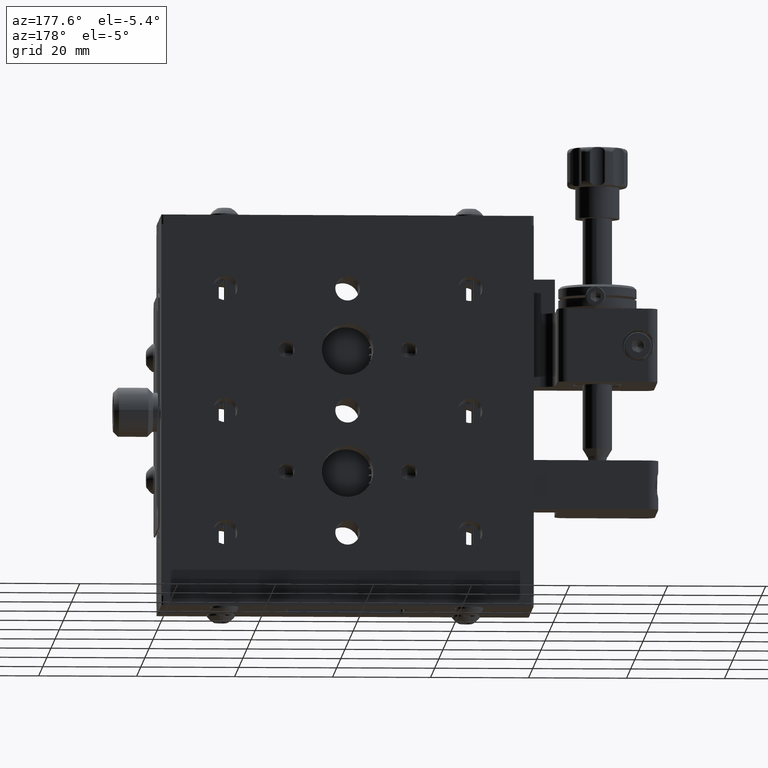
[diagram: clean part render]
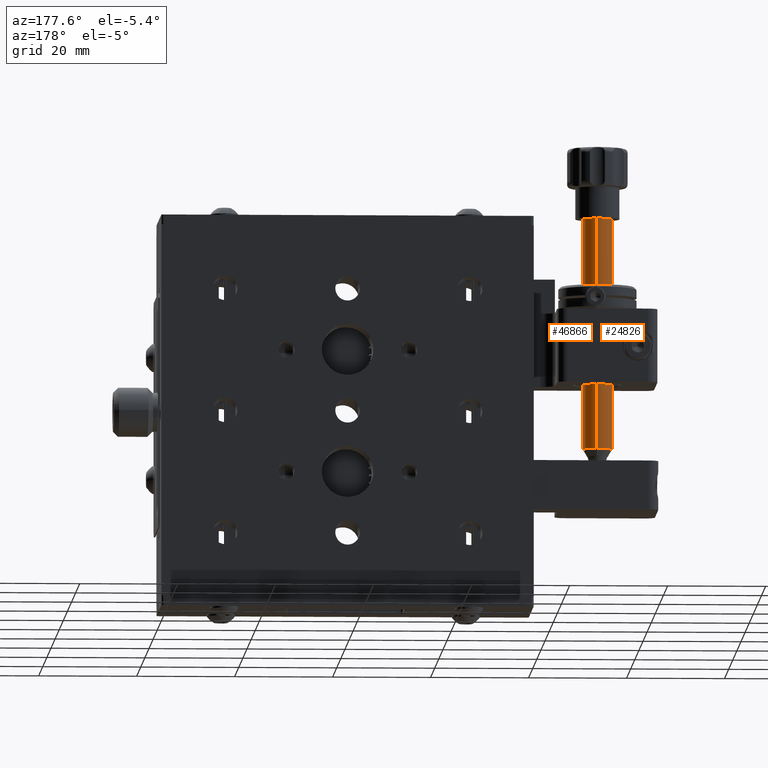
[diagram: same view with one multi-face feature highlighted, each face labeled with its STEP entity id]
A machine part, auxiliary view. The highlighted faces form ONE feature: a constant-radius fillet chain: 2 tangent blend faces with common blend radius 3 mm. The faces share edges in the B-rep.
Their STEP definitions:
[1] entity #46866 (Cylinder):
#459 = LINE ( 'NONE', #47248, #13894 ) ;
#2245 = DIRECTION ( 'NONE',  ( -0.09068454405069052700, -0.9958796681679560300, 0.0000000000000000000 ) ) ;
#3100 = DIRECTION ( 'NONE',  ( -0.09068454405069052700, -0.9958796681679560300, 0.0000000000000000000 ) ) ;
#5027 = VERTEX_POINT ( 'NONE', #61770 ) ;
#9995 = CARTESIAN_POINT ( 'NONE',  ( -30.06647780438392200, -1.681196788895382000, 84.89088264794395400 ) ) ;
#13165 = CIRCLE ( 'NONE', #39322, 3.000000000000000000 ) ;
#13894 = VECTOR ( 'NONE', #24635, 1000.000000000000000 ) ;
#14003 = CARTESIAN_POINT ( 'NONE',  ( -30.06647780438388700, -1.681196788895380500, 157.9300000000000100 ) ) ;
#15630 = CIRCLE ( 'NONE', #65214, 3.000000000000000000 ) ;
#15789 = DIRECTION ( 'NONE',  ( -0.09068454405069052700, -0.9958796681679560300, 0.0000000000000000000 ) ) ;
#17636 = VERTEX_POINT ( 'NONE', #19613 ) ;
#18684 = EDGE_CURVE ( 'NONE', #66996, #21886, #61642, .T. ) ;
#19206 = AXIS2_PLACEMENT_3D ( 'NONE', #66105, #54923, #15789 ) ;
#19613 = CARTESIAN_POINT ( 'NONE',  ( -29.52237054007977300, 4.294081220112353500, 104.4300000000001200 ) ) ;
#19821 = DIRECTION ( 'NONE',  ( -4.820006804609305600E-016, -2.775557562830245700E-017, -1.000000000000000000 ) ) ;
#21886 = VERTEX_POINT ( 'NONE', #60204 ) ;
#22444 = DIRECTION ( 'NONE',  ( -4.820006804609305600E-016, -2.775557562830245700E-017, -1.000000000000000000 ) ) ;
#23957 = DIRECTION ( 'NONE',  ( -4.820006804609305600E-016, -2.775557562830245700E-017, -1.000000000000000000 ) ) ;
#24635 = DIRECTION ( 'NONE',  ( -4.820006804609305600E-016, -2.775557562830245700E-017, -1.000000000000000000 ) ) ;
#25960 = ORIENTED_EDGE ( 'NONE', *, *, #39052, .F. ) ;
#26359 = FACE_OUTER_BOUND ( 'NONE', #55074, .T. ) ;
#26959 = VECTOR ( 'NONE', #22444, 1000.000000000000000 ) ;
#32840 = ORIENTED_EDGE ( 'NONE', *, *, #57939, .F. ) ;
#39052 = EDGE_CURVE ( 'NONE', #5027, #17636, #459, .T. ) ;
#39322 = AXIS2_PLACEMENT_3D ( 'NONE', #47072, #23957, #2245 ) ;
#42212 = CARTESIAN_POINT ( 'NONE',  ( -29.79442417223181400, 1.306442215608487600, 157.9300000000000100 ) ) ;
#44411 = ORIENTED_EDGE ( 'NONE', *, *, #51253, .T. ) ;
#46866 = ADVANCED_FACE ( 'NONE', ( #26359 ), #69131, .T. ) ;
#47072 = CARTESIAN_POINT ( 'NONE',  ( -29.79442417223184200, 1.306442215608485200, 104.4300000000001200 ) ) ;
#47248 = CARTESIAN_POINT ( 'NONE',  ( -29.52237054007977700, 4.294081220112353500, 84.89088264794395400 ) ) ;
#50515 = ORIENTED_EDGE ( 'NONE', *, *, #18684, .T. ) ;
#51253 = EDGE_CURVE ( 'NONE', #5027, #66996, #15630, .T. ) ;
#54923 = DIRECTION ( 'NONE',  ( -4.820006804609305600E-016, -2.775557562830245700E-017, -1.000000000000000000 ) ) ;
#55074 = EDGE_LOOP ( 'NONE', ( #25960, #44411, #50515, #32840 ) ) ;
#57939 = EDGE_CURVE ( 'NONE', #17636, #21886, #13165, .T. ) ;
#60204 = CARTESIAN_POINT ( 'NONE',  ( -30.06647780438391500, -1.681196788895382900, 104.4300000000001200 ) ) ;
#61642 = LINE ( 'NONE', #9995, #26959 ) ;
#61770 = CARTESIAN_POINT ( 'NONE',  ( -29.52237054007975900, 4.294081220112357900, 157.9300000000000100 ) ) ;
#65214 = AXIS2_PLACEMENT_3D ( 'NONE', #42212, #19821, #3100 ) ;
#66105 = CARTESIAN_POINT ( 'NONE',  ( -29.79442417223184900, 1.306442215608486100, 84.89088264794395400 ) ) ;
#66996 = VERTEX_POINT ( 'NONE', #14003 ) ;
#69131 = CYLINDRICAL_SURFACE ( 'NONE', #19206, 3.000000000000000000 ) ;
[2] entity #24826 (Cylinder):
#459 = LINE ( 'NONE', #47248, #13894 ) ;
#5027 = VERTEX_POINT ( 'NONE', #61770 ) ;
#5456 = EDGE_LOOP ( 'NONE', ( #25801, #32623, #42681, #9273 ) ) ;
#6013 = CARTESIAN_POINT ( 'NONE',  ( -29.79442417223181400, 1.306442215608487600, 157.9300000000000100 ) ) ;
#6599 = AXIS2_PLACEMENT_3D ( 'NONE', #44114, #22202, #73203 ) ;
#9273 = ORIENTED_EDGE ( 'NONE', *, *, #18684, .F. ) ;
#9995 = CARTESIAN_POINT ( 'NONE',  ( -30.06647780438392200, -1.681196788895382000, 84.89088264794395400 ) ) ;
#11994 = AXIS2_PLACEMENT_3D ( 'NONE', #64633, #47416, #48152 ) ;
#13894 = VECTOR ( 'NONE', #24635, 1000.000000000000000 ) ;
#14003 = CARTESIAN_POINT ( 'NONE',  ( -30.06647780438388700, -1.681196788895380500, 157.9300000000000100 ) ) ;
#17636 = VERTEX_POINT ( 'NONE', #19613 ) ;
#17887 = FACE_OUTER_BOUND ( 'NONE', #5456, .T. ) ;
#18684 = EDGE_CURVE ( 'NONE', #66996, #21886, #61642, .T. ) ;
#19613 = CARTESIAN_POINT ( 'NONE',  ( -29.52237054007977300, 4.294081220112353500, 104.4300000000001200 ) ) ;
#21886 = VERTEX_POINT ( 'NONE', #60204 ) ;
#22202 = DIRECTION ( 'NONE',  ( -4.820006804609305600E-016, -2.775557562830245700E-017, -1.000000000000000000 ) ) ;
#22444 = DIRECTION ( 'NONE',  ( -4.820006804609305600E-016, -2.775557562830245700E-017, -1.000000000000000000 ) ) ;
#22482 = EDGE_CURVE ( 'NONE', #21886, #17636, #67450, .T. ) ;
#24635 = DIRECTION ( 'NONE',  ( -4.820006804609305600E-016, -2.775557562830245700E-017, -1.000000000000000000 ) ) ;
#24826 = ADVANCED_FACE ( 'NONE', ( #17887 ), #39222, .T. ) ;
#25801 = ORIENTED_EDGE ( 'NONE', *, *, #68397, .T. ) ;
#26959 = VECTOR ( 'NONE', #22444, 1000.000000000000000 ) ;
#32623 = ORIENTED_EDGE ( 'NONE', *, *, #39052, .T. ) ;
#39052 = EDGE_CURVE ( 'NONE', #5027, #17636, #459, .T. ) ;
#39222 = CYLINDRICAL_SURFACE ( 'NONE', #11994, 3.000000000000000000 ) ;
#42681 = ORIENTED_EDGE ( 'NONE', *, *, #22482, .F. ) ;
#44114 = CARTESIAN_POINT ( 'NONE',  ( -29.79442417223184200, 1.306442215608485200, 104.4300000000001200 ) ) ;
#47248 = CARTESIAN_POINT ( 'NONE',  ( -29.52237054007977700, 4.294081220112353500, 84.89088264794395400 ) ) ;
#47416 = DIRECTION ( 'NONE',  ( -4.820006804609305600E-016, -2.775557562830245700E-017, -1.000000000000000000 ) ) ;
#48152 = DIRECTION ( 'NONE',  ( -0.09068454405069052700, -0.9958796681679560300, 0.0000000000000000000 ) ) ;
#60204 = CARTESIAN_POINT ( 'NONE',  ( -30.06647780438391500, -1.681196788895382900, 104.4300000000001200 ) ) ;
#61642 = LINE ( 'NONE', #9995, #26959 ) ;
#61770 = CARTESIAN_POINT ( 'NONE',  ( -29.52237054007975900, 4.294081220112357900, 157.9300000000000100 ) ) ;
#62572 = DIRECTION ( 'NONE',  ( -0.09068454405069052700, -0.9958796681679560300, 0.0000000000000000000 ) ) ;
#62818 = DIRECTION ( 'NONE',  ( -4.820006804609305600E-016, -2.775557562830245700E-017, -1.000000000000000000 ) ) ;
#63233 = AXIS2_PLACEMENT_3D ( 'NONE', #6013, #62818, #62572 ) ;
#63443 = CIRCLE ( 'NONE', #63233, 3.000000000000000000 ) ;
#64633 = CARTESIAN_POINT ( 'NONE',  ( -29.79442417223184900, 1.306442215608486100, 84.89088264794395400 ) ) ;
#66996 = VERTEX_POINT ( 'NONE', #14003 ) ;
#67450 = CIRCLE ( 'NONE', #6599, 3.000000000000000000 ) ;
#68397 = EDGE_CURVE ( 'NONE', #66996, #5027, #63443, .T. ) ;
#73203 = DIRECTION ( 'NONE',  ( -0.09068454405069052700, -0.9958796681679560300, 0.0000000000000000000 ) ) ;